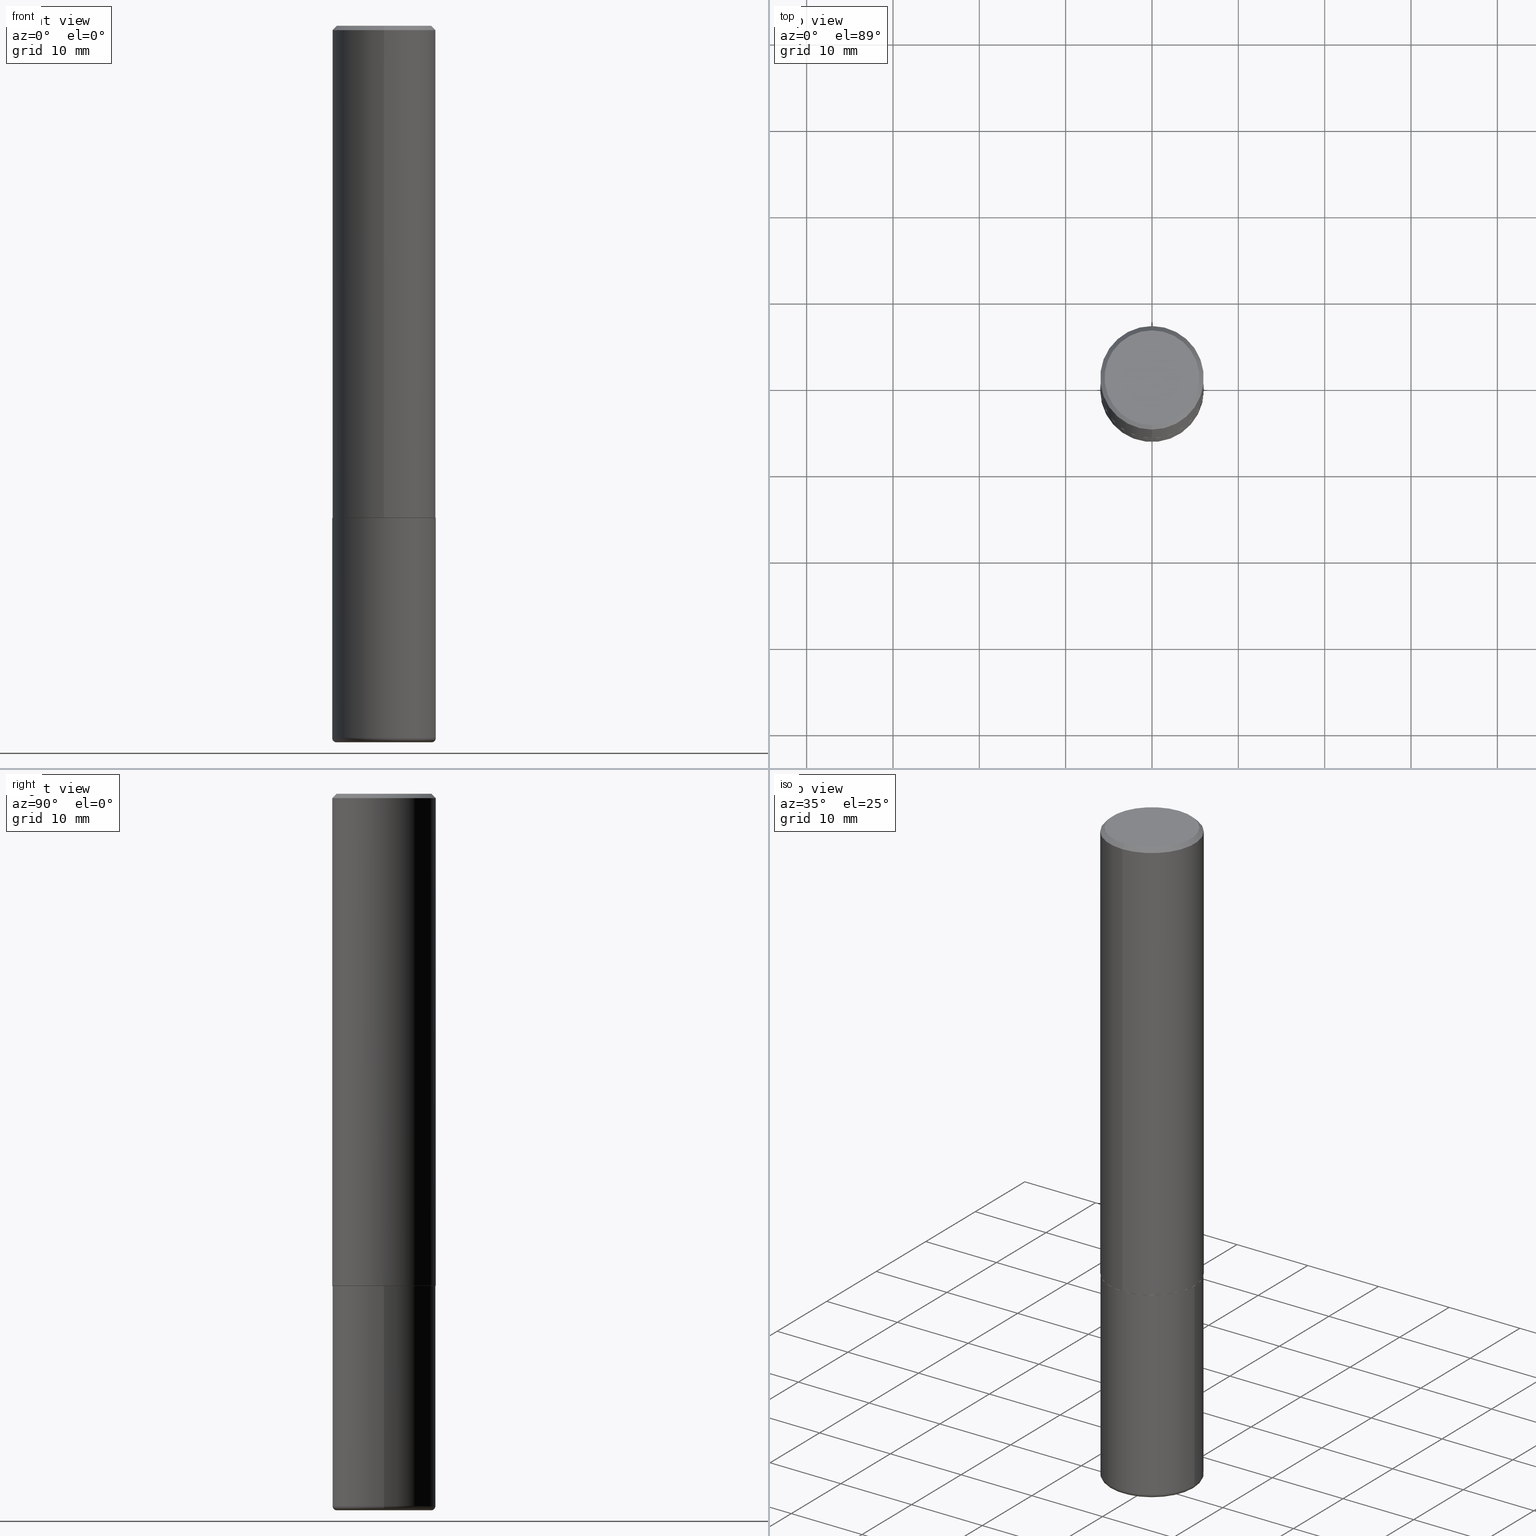
[diagram: canonical four-view strip — front | top / right | iso, engineering-drawing reading convention]
A machine part, canonical four-view strip (front | top / right | iso — engineering-drawing reading convention). The complete STEP part file that produces these views, byte-faithful:
ISO-10303-21;
HEADER;
FILE_DESCRIPTION (( 'STEP AP203' ),
    '1' );
FILE_NAME ('47128.STEP',
    '2024-03-05T21:36:11',
    ( '' ),
    ( '' ),
    'SwSTEP 2.0',
    'SolidWorks 2023',
    '' );
FILE_SCHEMA (( 'CONFIG_CONTROL_DESIGN' ));
ENDSEC;

DATA;
#1 = AXIS2_PLACEMENT_3D ( 'NONE', #394, #118, #313 ) ;
#2 = ORIENTED_EDGE ( 'NONE', *, *, #292, .T. ) ;
#3 = DIRECTION ( 'NONE',  ( -1.000000000000000000, 6.982962677686265922E-15, -4.876176775795935793E-29 ) ) ;
#4 = TOROIDAL_SURFACE ( 'NONE', #249, 0.2164999999999999980, 0.01969999999999962059 ) ;
#5 = COORDINATED_UNIVERSAL_TIME_OFFSET ( 5, 0, .BEHIND. ) ;
#6 = LINE ( 'NONE', #77, #261 ) ;
#7 = DIRECTION ( 'NONE',  ( -2.445468806185136597E-29, 3.491481338843145583E-15, 1.000000000000000000 ) ) ;
#8 = CC_DESIGN_PERSON_AND_ORGANIZATION_ASSIGNMENT ( #275, #113, ( #400 ) ) ;
#9 = ORIENTED_EDGE ( 'NONE', *, *, #177, .T. ) ;
#10 = CARTESIAN_POINT ( 'NONE',  ( 7.991058417971169471E-29, -1.140911357093774486E-14, -3.267699999999999605 ) ) ;
#11 = VERTEX_POINT ( 'NONE', #71 ) ;
#12 = EDGE_CURVE ( 'NONE', #156, #24, #344, .T. ) ;
#13 = AXIS2_PLACEMENT_3D ( 'NONE', #93, #348, #55 ) ;
#14 = DIRECTION ( 'NONE',  ( -6.982962677686265133E-15, -1.000000000000000000, 3.484499991918703113E-15 ) ) ;
#15 = PRODUCT_RELATED_PRODUCT_CATEGORY ( 'detail', '', ( #400 ) ) ;
#16 = APPROVAL_ROLE ( '' ) ;
#17 = DATE_TIME_ROLE ( 'creation_date' ) ;
#18 = LINE ( 'NONE', #50, #407 ) ;
#19 = ORIENTED_EDGE ( 'NONE', *, *, #272, .T. ) ;
#20 = PERSON_AND_ORGANIZATION_ROLE ( 'creator' ) ;
#21 = DIRECTION ( 'NONE',  ( -1.000000000000000000, 7.105427357600965571E-15, 0.000000000000000000 ) ) ;
#22 = AXIS2_PLACEMENT_3D ( 'NONE', #417, #260, #138 ) ;
#23 = AXIS2_PLACEMENT_3D ( 'NONE', #248, #85, #211 ) ;
#24 = VERTEX_POINT ( 'NONE', #236 ) ;
#25 = APPROVAL_STATUS ( 'not_yet_approved' ) ;
#26 = DIRECTION ( 'NONE',  ( 6.982962677686265922E-15, 1.000000000000000000, -3.487819265831410167E-15 ) ) ;
#27 = EDGE_CURVE ( 'NONE', #243, #24, #124, .T. ) ;
#28 = ORIENTED_EDGE ( 'NONE', *, *, #333, .F. ) ;
#29 = CARTESIAN_POINT ( 'NONE',  ( 1.579546157692633621E-15, 0.2161999999999999478, -6.694880156558795861E-16 ) ) ;
#30 = ORIENTED_EDGE ( 'NONE', *, *, #226, .F. ) ;
#31 = ADVANCED_FACE ( 'NONE', ( #197 ), #289, .F. ) ;
#32 = LINE ( 'NONE', #94, #286 ) ;
#33 = ADVANCED_FACE ( 'NONE', ( #229 ), #411, .T. ) ;
#34 = AXIS2_PLACEMENT_3D ( 'NONE', #396, #240, #75 ) ;
#35 = AXIS2_PLACEMENT_3D ( 'NONE', #375, #269, #337 ) ;
#36 = ORGANIZATION ( 'UNSPECIFIED', 'UNSPECIFIED', '' ) ;
#37 = VERTEX_POINT ( 'NONE', #382 ) ;
#38 = DIRECTION ( 'NONE',  ( 1.000000000000000000, -6.982962677686269077E-15, 0.000000000000000000 ) ) ;
#39 = DIRECTION ( 'NONE',  ( -2.445221809746292518E-29, 3.491835051801734308E-15, 1.000000000000000000 ) ) ;
#40 = CIRCLE ( 'NONE', #13, 0.2164999999999999980 ) ;
#41 = CC_DESIGN_APPROVAL ( #101, ( #206 ) ) ;
#42 = CC_DESIGN_DATE_AND_TIME_ASSIGNMENT ( #378, #17, ( #206 ) ) ;
#43 = DIRECTION ( 'NONE',  ( -2.445221809746292518E-29, 3.491835051801734308E-15, 1.000000000000000000 ) ) ;
#44 = ADVANCED_BREP_SHAPE_REPRESENTATION ( '47128', ( #299, #152, #201 ), #399 ) ;
#45 = CARTESIAN_POINT ( 'NONE',  ( 7.942882682489324976E-29, -1.134033138856253841E-14, -3.248000000000000220 ) ) ;
#46 = ORIENTED_EDGE ( 'NONE', *, *, #126, .F. ) ;
#47 = DIRECTION ( 'NONE',  ( -2.445221809746292518E-29, 3.491835051801734308E-15, 1.000000000000000000 ) ) ;
#48 = ORIENTED_EDGE ( 'NONE', *, *, #384, .T. ) ;
#49 = CIRCLE ( 'NONE', #231, 0.2362000000000002709 ) ;
#50 = CARTESIAN_POINT ( 'NONE',  ( -1.649375784469497117E-15, -0.2362000000000001598, 8.247714392355702416E-16 ) ) ;
#51 = ORIENTED_EDGE ( 'NONE', *, *, #168, .T. ) ;
#52 = PERSON_AND_ORGANIZATION ( #234, #36 ) ;
#53 = DIRECTION ( 'NONE',  ( 7.105427357601001859E-15, 1.000000000000000000, -3.491481338843145583E-15 ) ) ;
#54 = EDGE_CURVE ( 'NONE', #243, #139, #32, .T. ) ;
#55 = DIRECTION ( 'NONE',  ( 1.000000000000000000, -6.982962677686267499E-15, 0.000000000000000000 ) ) ;
#56 = ORIENTED_EDGE ( 'NONE', *, *, #70, .T. ) ;
#57 = CARTESIAN_POINT ( 'NONE',  ( 1.674749228186611702E-15, 0.2351999999999921653, -2.244100000000000872 ) ) ;
#58 = EDGE_CURVE ( 'NONE', #60, #11, #137, .T. ) ;
#59 = CIRCLE ( 'NONE', #97, 0.2362000000000000766 ) ;
#60 = VERTEX_POINT ( 'NONE', #274 ) ;
#61 = DATE_AND_TIME ( #95, #69 ) ;
#62 = DIRECTION ( 'NONE',  ( 5.024295867789263036E-15, 0.7071067811867189912, 0.7071067811863760433 ) ) ;
#63 = EDGE_CURVE ( 'NONE', #353, #139, #390, .T. ) ;
#64 = ORIENTED_EDGE ( 'NONE', *, *, #333, .T. ) ;
#65 = ORIENTED_EDGE ( 'NONE', *, *, #76, .T. ) ;
#66 = EDGE_CURVE ( 'NONE', #11, #60, #59, .T. ) ;
#67 = DIRECTION ( 'NONE',  ( 0.000000000000000000, 0.000000000000000000, 1.000000000000000000 ) ) ;
#68 = VECTOR ( 'NONE', #161, 39.37007874015748143 ) ;
#69 = LOCAL_TIME ( 16, 36, 11.00000000000000000, #383 ) ;
#70 = EDGE_CURVE ( 'NONE', #285, #159, #244, .T. ) ;
#71 = CARTESIAN_POINT ( 'NONE',  ( -1.620449627073635473E-15, -0.2362000000000001321, -0.01999999999999922673 ) ) ;
#72 = AXIS2_PLACEMENT_3D ( 'NONE', #315, #262, #218 ) ;
#73 = LOCAL_TIME ( 16, 36, 11.00000000000000000, #5 ) ;
#74 = EDGE_LOOP ( 'NONE', ( #342, #9, #105, #332 ) ) ;
#75 = DIRECTION ( 'NONE',  ( 1.000000000000000000, -6.982962677686267499E-15, 4.883557194083112901E-29 ) ) ;
#76 = EDGE_CURVE ( 'NONE', #285, #323, #351, .T. ) ;
#77 = CARTESIAN_POINT ( 'NONE',  ( -1.620449627073635473E-15, -0.2362000000000001321, -0.01999999999999922673 ) ) ;
#78 = AXIS2_PLACEMENT_3D ( 'NONE', #304, #294, #263 ) ;
#79 = LOCAL_TIME ( 16, 36, 11.00000000000000000, #364 ) ;
#80 = CARTESIAN_POINT ( 'NONE',  ( 5.487322263251655570E-29, -7.836027039748271518E-15, -2.244099999999999984 ) ) ;
#81 = APPROVAL_STATUS ( 'not_yet_approved' ) ;
#82 = CARTESIAN_POINT ( 'NONE',  ( -0.2361999999999999933, -7.909480388664863981E-15, -2.244100000000000428 ) ) ;
#83 = ORIENTED_EDGE ( 'NONE', *, *, #398, .F. ) ;
#84 = DATE_AND_TIME ( #281, #308 ) ;
#85 = DIRECTION ( 'NONE',  ( -2.445468806185136597E-29, 3.491481338843145583E-15, 1.000000000000000000 ) ) ;
#86 = EDGE_LOOP ( 'NONE', ( #30, #28, #2, #116 ) ) ;
#87 = AXIS2_PLACEMENT_3D ( 'NONE', #319, #165, #389 ) ;
#88 = APPROVAL_PERSON_ORGANIZATION ( #216, #357, #251 ) ;
#89 = CARTESIAN_POINT ( 'NONE',  ( 0.000000000000000000, 0.000000000000000000, 0.000000000000000000 ) ) ;
#90 = CARTESIAN_POINT ( 'NONE',  ( -2.089361895350857775E-45, 2.983658608395124733E-31, 8.544672254365514246E-17 ) ) ;
#91 = EDGE_LOOP ( 'NONE', ( #64, #51 ) ) ;
#92 = EDGE_CURVE ( 'NONE', #37, #60, #180, .T. ) ;
#93 = CARTESIAN_POINT ( 'NONE',  ( 7.991058417971169471E-29, -1.140911357093774486E-14, -3.267699999999999605 ) ) ;
#94 = CARTESIAN_POINT ( 'NONE',  ( -0.2361999999999999933, 1.678301941865356591E-15, -1.161852468318208757E-29 ) ) ;
#95 = CALENDAR_DATE ( 2024, 5, 3 ) ;
#96 = FACE_OUTER_BOUND ( 'NONE', #74, .T. ) ;
#97 = AXIS2_PLACEMENT_3D ( 'NONE', #207, #43, #338 ) ;
#98 = ADVANCED_FACE ( 'NONE', ( #372 ), #334, .T. ) ;
#99 = AXIS2_PLACEMENT_3D ( 'NONE', #89, #385, #324 ) ;
#100 = VERTEX_POINT ( 'NONE', #171 ) ;
#101 = APPROVAL ( #81, 'UNSPECIFIED' ) ;
#102 = DIRECTION ( 'NONE',  ( -1.000000000000000000, 6.982962677686265922E-15, -4.876176775795935793E-29 ) ) ;
#103 = AXIS2_PLACEMENT_3D ( 'NONE', #10, #144, #109 ) ;
#104 = CC_DESIGN_APPROVAL ( #357, ( #114 ) ) ;
#105 = ORIENTED_EDGE ( 'NONE', *, *, #12, .T. ) ;
#106 = ORIENTED_EDGE ( 'NONE', *, *, #27, .T. ) ;
#107 = AXIS2_PLACEMENT_3D ( 'NONE', #143, #7, #403 ) ;
#108 = PERSON_AND_ORGANIZATION ( #234, #36 ) ;
#109 = DIRECTION ( 'NONE',  ( 1.000000000000000000, -6.982962677686267499E-15, 0.000000000000000000 ) ) ;
#110 = CARTESIAN_POINT ( 'NONE',  ( 5.487322263251655570E-29, -7.836027039748271518E-15, -2.244099999999999984 ) ) ;
#111 = CARTESIAN_POINT ( 'NONE',  ( 5.487322263251655570E-29, -7.836027039748271518E-15, -2.244099999999999984 ) ) ;
#112 = AXIS2_PLACEMENT_3D ( 'NONE', #256, #297, #354 ) ;
#113 = PERSON_AND_ORGANIZATION_ROLE ( 'design_owner' ) ;
#114 = SECURITY_CLASSIFICATION ( '', '', #258 ) ;
#115 = CARTESIAN_POINT ( 'NONE',  ( -0.2164999999999999980, -9.766408997357156869E-15, -3.267699999999999605 ) ) ;
#116 = ORIENTED_EDGE ( 'NONE', *, *, #58, .T. ) ;
#117 = SHAPE_DEFINITION_REPRESENTATION ( #339, #44 ) ;
#118 = DIRECTION ( 'NONE',  ( -2.445221809746292518E-29, 3.491835051801734308E-15, 1.000000000000000000 ) ) ;
#119 = ORIENTED_EDGE ( 'NONE', *, *, #272, .F. ) ;
#120 = PERSON_AND_ORGANIZATION_ROLE ( 'classification_officer' ) ;
#121 = FACE_OUTER_BOUND ( 'NONE', #86, .T. ) ;
#122 = EDGE_LOOP ( 'NONE', ( #19, #266, #196, #178 ) ) ;
#123 = PERSON_AND_ORGANIZATION ( #234, #36 ) ;
#124 = CIRCLE ( 'NONE', #87, 0.2361999999999999933 ) ;
#125 = PLANE ( 'NONE',  #167 ) ;
#126 = EDGE_CURVE ( 'NONE', #24, #353, #202, .T. ) ;
#127 = CARTESIAN_POINT ( 'NONE',  ( 5.487322263251655570E-29, -7.836027039748271518E-15, -2.244099999999999984 ) ) ;
#128 = DIRECTION ( 'NONE',  ( 2.438088387897960049E-29, -3.491481338843145188E-15, -1.000000000000000000 ) ) ;
#129 = COORDINATED_UNIVERSAL_TIME_OFFSET ( 5, 0, .BEHIND. ) ;
#130 = DIRECTION ( 'NONE',  ( 2.445221809746292518E-29, -3.491835051801734308E-15, -1.000000000000000000 ) ) ;
#131 = DIRECTION ( 'NONE',  ( -2.445468806185136877E-29, 3.491481338843145188E-15, 1.000000000000000000 ) ) ;
#132 = DIRECTION ( 'NONE',  ( 6.982962677686265922E-15, 1.000000000000000000, -3.491835051801734702E-15 ) ) ;
#133 = AXIS2_PLACEMENT_3D ( 'NONE', #409, #128, #102 ) ;
#134 = ORIENTED_EDGE ( 'NONE', *, *, #66, .T. ) ;
#135 = APPLICATION_PROTOCOL_DEFINITION ( 'international standard', 'config_control_design', 1994, #253 ) ;
#136 =( CONVERSION_BASED_UNIT ( 'INCH', #329 ) LENGTH_UNIT ( ) NAMED_UNIT ( #296 ) );
#137 = CIRCLE ( 'NONE', #22, 0.2362000000000000766 ) ;
#138 = DIRECTION ( 'NONE',  ( -6.982962677686265922E-15, -1.000000000000000000, 3.487819265831410167E-15 ) ) ;
#139 = VERTEX_POINT ( 'NONE', #82 ) ;
#140 = CC_DESIGN_PERSON_AND_ORGANIZATION_ASSIGNMENT ( #151, #120, ( #114 ) ) ;
#141 = CARTESIAN_POINT ( 'NONE',  ( 0.2164999999999999980, -1.292092499065682217E-14, -3.267699999999999605 ) ) ;
#142 = CALENDAR_DATE ( 2024, 5, 3 ) ;
#143 = CARTESIAN_POINT ( 'NONE',  ( 0.000000000000000000, 0.000000000000000000, 0.000000000000000000 ) ) ;
#144 = DIRECTION ( 'NONE',  ( -2.445468806185136597E-29, 3.491481338843145583E-15, 1.000000000000000000 ) ) ;
#145 = DIRECTION ( 'NONE',  ( -6.982962677686265133E-15, -1.000000000000000000, 3.484499991918703113E-15 ) ) ;
#146 = CIRCLE ( 'NONE', #367, 0.2361999999999999933 ) ;
#147 = ADVANCED_FACE ( 'NONE', ( #307 ), #306, .T. ) ;
#148 = DIRECTION ( 'NONE',  ( -4.851104656540962697E-15, -0.7071067811865497932, -0.7071067811865452413 ) ) ;
#149 = CARTESIAN_POINT ( 'NONE',  ( 7.942882682489324976E-29, -1.134033138856253841E-14, -3.248000000000000220 ) ) ;
#150 = ORIENTED_EDGE ( 'NONE', *, *, #126, .T. ) ;
#151 = PERSON_AND_ORGANIZATION ( #234, #36 ) ;
#152 = MANIFOLD_SOLID_BREP ( 'Body-Move/Copy2[2]', #214 ) ;
#153 = DIRECTION ( 'NONE',  ( -2.445221809746292518E-29, 3.491835051801734702E-15, 1.000000000000000000 ) ) ;
#154 = ORIENTED_EDGE ( 'NONE', *, *, #63, .F. ) ;
#155 = DIRECTION ( 'NONE',  ( -2.445468806185136597E-29, 3.491481338843145583E-15, 1.000000000000000000 ) ) ;
#156 = VERTEX_POINT ( 'NONE', #141 ) ;
#157 = APPROVAL_DATE_TIME ( #61, #357 ) ;
#158 = CARTESIAN_POINT ( 'NONE',  ( 1.509716530915770323E-15, 0.2161999999999999478, -7.122113769277070896E-16 ) ) ;
#159 = VERTEX_POINT ( 'NONE', #336 ) ;
#160 = CC_DESIGN_PERSON_AND_ORGANIZATION_ASSIGNMENT ( #52, #20, ( #287 ) ) ;
#161 = DIRECTION ( 'NONE',  ( 4.937700262164546464E-15, 0.7071067811865449082, -0.7071067811865501263 ) ) ;
#162 = EDGE_LOOP ( 'NONE', ( #393, #358, #317, #227 ) ) ;
#163 = TOROIDAL_SURFACE ( 'NONE', #34, 0.2164999999999999980, 0.01969999999999962059 ) ;
#164 = CONICAL_SURFACE ( 'NONE', #237, 0.2362000000000000766, 0.7853981633974480570 ) ;
#165 = DIRECTION ( 'NONE',  ( -2.445468806185136597E-29, 3.491481338843145583E-15, 1.000000000000000000 ) ) ;
#166 = AXIS2_PLACEMENT_3D ( 'NONE', #80, #47, #340 ) ;
#167 = AXIS2_PLACEMENT_3D ( 'NONE', #288, #379, #376 ) ;
#168 = EDGE_CURVE ( 'NONE', #100, #254, #361, .T. ) ;
#169 = EDGE_LOOP ( 'NONE', ( #213, #316 ) ) ;
#170 = CC_DESIGN_PERSON_AND_ORGANIZATION_ASSIGNMENT ( #123, #321, ( #287 ) ) ;
#171 = CARTESIAN_POINT ( 'NONE',  ( -1.551844647095920142E-15, -0.2161999999999999478, 8.403814607431897971E-16 ) ) ;
#172 = PERSON_AND_ORGANIZATION ( #234, #36 ) ;
#173 = CYLINDRICAL_SURFACE ( 'NONE', #107, 0.2361999999999999933 ) ;
#174 = CIRCLE ( 'NONE', #72, 0.2362000000000002709 ) ;
#175 = CARTESIAN_POINT ( 'NONE',  ( 1.678301941865357577E-15, 0.2362000000000001598, -8.247714392355702416E-16 ) ) ;
#176 = CARTESIAN_POINT ( 'NONE',  ( 0.2361999999999999933, -1.649375784469496131E-15, 1.151752954443000088E-29 ) ) ;
#177 = EDGE_CURVE ( 'NONE', #200, #156, #265, .T. ) ;
#178 = ORIENTED_EDGE ( 'NONE', *, *, #12, .F. ) ;
#179 = CALENDAR_DATE ( 2024, 5, 3 ) ;
#180 = LINE ( 'NONE', #175, #223 ) ;
#181 = ORIENTED_EDGE ( 'NONE', *, *, #384, .F. ) ;
#182 = CONICAL_SURFACE ( 'NONE', #377, 0.2351999999999999924, 0.7853981633976873100 ) ;
#183 = DIRECTION ( 'NONE',  ( -2.445221809746292518E-29, 3.491835051801734308E-15, 1.000000000000000000 ) ) ;
#184 = EDGE_LOOP ( 'NONE', ( #119, #380 ) ) ;
#185 = COORDINATED_UNIVERSAL_TIME_OFFSET ( 5, 0, .BEHIND. ) ;
#186 = PLANE ( 'NONE',  #387 ) ;
#187 = DATE_AND_TIME ( #190, #215 ) ;
#188 = CARTESIAN_POINT ( 'NONE',  ( 1.649375784469496920E-15, 0.2361999999999999933, -0.02000000000000087472 ) ) ;
#189 = ORIENTED_EDGE ( 'NONE', *, *, #412, .F. ) ;
#190 = CALENDAR_DATE ( 2024, 5, 3 ) ;
#191 = CIRCLE ( 'NONE', #320, 0.01969999999999962059 ) ;
#192 = FACE_OUTER_BOUND ( 'NONE', #91, .T. ) ;
#193 = ORIENTED_EDGE ( 'NONE', *, *, #246, .T. ) ;
#194 = PERSON_AND_ORGANIZATION ( #234, #36 ) ;
#195 = CARTESIAN_POINT ( 'NONE',  ( 1.671196514507810212E-15, 0.2351999999999921653, -2.244100000000000872 ) ) ;
#196 = ORIENTED_EDGE ( 'NONE', *, *, #209, .F. ) ;
#197 = FACE_OUTER_BOUND ( 'NONE', #267, .T. ) ;
#198 = CONICAL_SURFACE ( 'NONE', #302, 0.2351999999999999924, 0.7853981633976873100 ) ;
#199 = ADVANCED_FACE ( 'NONE', ( #203 ), #163, .T. ) ;
#200 = VERTEX_POINT ( 'NONE', #115 ) ;
#201 = AXIS2_PLACEMENT_3D ( 'NONE', #230, #67, #298 ) ;
#202 = LINE ( 'NONE', #176, #242 ) ;
#203 = FACE_OUTER_BOUND ( 'NONE', #122, .T. ) ;
#204 = DIRECTION ( 'NONE',  ( -4.937700262165728178E-15, -0.7071067811867141062, 0.7071067811863809283 ) ) ;
#205 = AXIS2_PLACEMENT_3D ( 'NONE', #252, #130, #318 ) ;
#206 = PRODUCT_DEFINITION ( 'UNKNOWN', '', #287, #335 ) ;
#207 = CARTESIAN_POINT ( 'NONE',  ( 4.890443619492597157E-31, -6.983670103603485970E-17, -0.02000000000000005246 ) ) ;
#208 = DIRECTION ( 'NONE',  ( -2.445221809746292518E-29, 3.491835051801734702E-15, 1.000000000000000000 ) ) ;
#209 = EDGE_CURVE ( 'NONE', #24, #243, #146, .T. ) ;
#210 = ORIENTED_EDGE ( 'NONE', *, *, #54, .T. ) ;
#211 = DIRECTION ( 'NONE',  ( 1.000000000000000000, -6.982962677686269077E-15, 0.000000000000000000 ) ) ;
#212 = ADVANCED_FACE ( 'NONE', ( #365 ), #182, .T. ) ;
#213 = ORIENTED_EDGE ( 'NONE', *, *, #76, .F. ) ;
#214 = CLOSED_SHELL ( 'NONE', ( #359, #33, #363, #300, #341, #212, #326, #371 ) ) ;
#215 = LOCAL_TIME ( 16, 36, 11.00000000000000000, #129 ) ;
#216 = PERSON_AND_ORGANIZATION ( #234, #36 ) ;
#217 = DIRECTION ( 'NONE',  ( -2.445221809746292518E-29, 3.491835051801734308E-15, 1.000000000000000000 ) ) ;
#218 = DIRECTION ( 'NONE',  ( -6.982962677686265922E-15, -1.000000000000000000, 3.469747663417773058E-15 ) ) ;
#219 = ORIENTED_EDGE ( 'NONE', *, *, #295, .F. ) ;
#220 = FACE_OUTER_BOUND ( 'NONE', #314, .T. ) ;
#221 = ORIENTED_EDGE ( 'NONE', *, *, #66, .F. ) ;
#222 = AXIS2_PLACEMENT_3D ( 'NONE', #276, #271, #3 ) ;
#223 = VECTOR ( 'NONE', #208, 39.37007874015748143 ) ;
#224 = CC_DESIGN_APPROVAL ( #392, ( #287 ) ) ;
#225 = CARTESIAN_POINT ( 'NONE',  ( 0.2361999999999999933, -9.484609056967400443E-15, -2.244100000000000428 ) ) ;
#226 = EDGE_CURVE ( 'NONE', #100, #11, #6, .T. ) ;
#227 = ORIENTED_EDGE ( 'NONE', *, *, #58, .F. ) ;
#228 = ADVANCED_FACE ( 'NONE', ( #282 ), #173, .T. ) ;
#229 = FACE_OUTER_BOUND ( 'NONE', #397, .T. ) ;
#230 = CARTESIAN_POINT ( 'NONE',  ( 0.000000000000000000, 0.000000000000000000, 0.000000000000000000 ) ) ;
#231 = AXIS2_PLACEMENT_3D ( 'NONE', #343, #183, #346 ) ;
#232 = CC_DESIGN_PERSON_AND_ORGANIZATION_ASSIGNMENT ( #108, #238, ( #206 ) ) ;
#233 = ORIENTED_EDGE ( 'NONE', *, *, #303, .F. ) ;
#234 = PERSON ( 'UNSPECIFIED', 'UNSPECIFIED', 'UNSPECIFIED', ('UNSPECIFIED'), ('UNSPECIFIED'), ('UNSPECIFIED') ) ;
#235 = AXIS2_PLACEMENT_3D ( 'NONE', #110, #310, #145 ) ;
#236 = CARTESIAN_POINT ( 'NONE',  ( 0.2361999999999997990, -1.298970717303203178E-14, -3.248000000000000220 ) ) ;
#237 = AXIS2_PLACEMENT_3D ( 'NONE', #283, #349, #26 ) ;
#238 = PERSON_AND_ORGANIZATION_ROLE ( 'creator' ) ;
#239 = DIRECTION ( 'NONE',  ( 1.000000000000000000, -6.982962677686265133E-15, 0.000000000000000000 ) ) ;
#240 = DIRECTION ( 'NONE',  ( -2.445468806185136597E-29, 3.491481338843145583E-15, 1.000000000000000000 ) ) ;
#241 = CARTESIAN_POINT ( 'NONE',  ( -1.642392821791754699E-15, -0.2352000000000078195, -2.244099999999999095 ) ) ;
#242 = VECTOR ( 'NONE', #309, 39.37007874015748143 ) ;
#243 = VERTEX_POINT ( 'NONE', #395 ) ;
#244 = LINE ( 'NONE', #241, #301 ) ;
#245 = CARTESIAN_POINT ( 'NONE',  ( 5.487876547960065873E-29, -7.835233272497903917E-15, -2.244100000000000428 ) ) ;
#246 = EDGE_CURVE ( 'NONE', #323, #285, #414, .T. ) ;
#247 = ORIENTED_EDGE ( 'NONE', *, *, #54, .F. ) ;
#248 = CARTESIAN_POINT ( 'NONE',  ( 5.487876547960065873E-29, -7.835233272497903917E-15, -2.244100000000000428 ) ) ;
#249 = AXIS2_PLACEMENT_3D ( 'NONE', #149, #155, #322 ) ;
#250 = APPROVAL_PERSON_ORGANIZATION ( #172, #101, #305 ) ;
#251 = APPROVAL_ROLE ( '' ) ;
#252 = CARTESIAN_POINT ( 'NONE',  ( 4.890443619492597157E-31, -6.983670103603485970E-17, -0.02000000000000005246 ) ) ;
#253 = APPLICATION_CONTEXT ( 'configuration controlled 3d designs of mechanical parts and assemblies' ) ;
#254 = VERTEX_POINT ( 'NONE', #29 ) ;
#255 = CYLINDRICAL_SURFACE ( 'NONE', #99, 0.2362000000000001598 ) ;
#256 = CARTESIAN_POINT ( 'NONE',  ( 0.000000000000000000, 0.000000000000000000, 0.000000000000000000 ) ) ;
#257 = CC_DESIGN_DATE_AND_TIME_ASSIGNMENT ( #84, #402, ( #114 ) ) ;
#258 = SECURITY_CLASSIFICATION_LEVEL ( 'unclassified' ) ;
#259 = FACE_OUTER_BOUND ( 'NONE', #162, .T. ) ;
#260 = DIRECTION ( 'NONE',  ( -2.445221809746292518E-29, 3.491835051801734308E-15, 1.000000000000000000 ) ) ;
#261 = VECTOR ( 'NONE', #148, 39.37007874015748143 ) ;
#262 = DIRECTION ( 'NONE',  ( -2.445221809746292518E-29, 3.491835051801734308E-15, 1.000000000000000000 ) ) ;
#263 = DIRECTION ( 'NONE',  ( 1.000000000000000000, -6.982962677686265133E-15, 0.000000000000000000 ) ) ;
#264 = ADVANCED_FACE ( 'NONE', ( #96 ), #4, .T. ) ;
#265 = CIRCLE ( 'NONE', #103, 0.2164999999999999980 ) ;
#266 = ORIENTED_EDGE ( 'NONE', *, *, #311, .T. ) ;
#267 = EDGE_LOOP ( 'NONE', ( #325, #415 ) ) ;
#268 = APPROVAL_DATE_TIME ( #312, #101 ) ;
#269 = DIRECTION ( 'NONE',  ( -2.445468806185136597E-29, 3.491481338843145583E-15, 1.000000000000000000 ) ) ;
#270 = CIRCLE ( 'NONE', #23, 0.2361999999999999933 ) ;
#271 = DIRECTION ( 'NONE',  ( 2.438088387897960049E-29, -3.491481338843145188E-15, -1.000000000000000000 ) ) ;
#272 = EDGE_CURVE ( 'NONE', #156, #200, #40, .T. ) ;
#273 = APPLICATION_CONTEXT ( 'configuration controlled 3d designs of mechanical parts and assemblies' ) ;
#274 = CARTESIAN_POINT ( 'NONE',  ( 1.649375784469496920E-15, 0.2361999999999999933, -0.02000000000000087472 ) ) ;
#275 = PERSON_AND_ORGANIZATION ( #234, #36 ) ;
#276 = CARTESIAN_POINT ( 'NONE',  ( 1.374957371002732032E-28, -3.162591918377267000E-15, -3.267699999999999605 ) ) ;
#277 = CLOSED_SHELL ( 'NONE', ( #98, #199, #31, #228, #264, #147 ) ) ;
#278 = CC_DESIGN_SECURITY_CLASSIFICATION ( #114, ( #287 ) ) ;
#279 = AXIS2_PLACEMENT_3D ( 'NONE', #90, #408, #410 ) ;
#280 = ORIENTED_EDGE ( 'NONE', *, *, #226, .T. ) ;
#281 = CALENDAR_DATE ( 2024, 5, 3 ) ;
#282 = FACE_OUTER_BOUND ( 'NONE', #391, .T. ) ;
#283 = CARTESIAN_POINT ( 'NONE',  ( 4.890443619492597157E-31, -6.983670103603485970E-17, -0.02000000000000005246 ) ) ;
#284 = CARTESIAN_POINT ( 'NONE',  ( -0.2164999999999999980, -9.802006365641922115E-15, -3.248000000000000220 ) ) ;
#285 = VERTEX_POINT ( 'NONE', #293 ) ;
#286 = VECTOR ( 'NONE', #131, 39.37007874015748143 ) ;
#287 = PRODUCT_DEFINITION_FORMATION_WITH_SPECIFIED_SOURCE ( 'ANY', '', #400, .NOT_KNOWN. ) ;
#288 = CARTESIAN_POINT ( 'NONE',  ( 5.487322263251655570E-29, -7.836027039748273096E-15, -2.244100000000000428 ) ) ;
#289 = PLANE ( 'NONE',  #133 ) ;
#290 = LINE ( 'NONE', #195, #328 ) ;
#291 = ORIENTED_EDGE ( 'NONE', *, *, #295, .T. ) ;
#292 = EDGE_CURVE ( 'NONE', #254, #60, #381, .T. ) ;
#293 = CARTESIAN_POINT ( 'NONE',  ( -1.642392821791754699E-15, -0.2352000000000078195, -2.244099999999999095 ) ) ;
#294 = DIRECTION ( 'NONE',  ( -6.982962677686266711E-15, -1.000000000000000000, 3.491481338843145583E-15 ) ) ;
#295 = EDGE_CURVE ( 'NONE', #159, #37, #174, .T. ) ;
#296 = DIMENSIONAL_EXPONENTS ( 1.000000000000000000, 0.000000000000000000, 0.000000000000000000, 0.000000000000000000, 0.000000000000000000, 0.000000000000000000, 0.000000000000000000 ) ;
#297 = DIRECTION ( 'NONE',  ( -2.445221809746292518E-29, 3.491835051801734308E-15, 1.000000000000000000 ) ) ;
#298 = DIRECTION ( 'NONE',  ( 1.000000000000000000, 0.000000000000000000, 0.000000000000000000 ) ) ;
#299 = MANIFOLD_SOLID_BREP ( 'Body-Move/Copy2[1]', #277 ) ;
#300 = ADVANCED_FACE ( 'NONE', ( #121 ), #355, .T. ) ;
#301 = VECTOR ( 'NONE', #204, 39.37007874015748143 ) ;
#302 = AXIS2_PLACEMENT_3D ( 'NONE', #127, #217, #352 ) ;
#303 = EDGE_CURVE ( 'NONE', #159, #11, #18, .T. ) ;
#304 = CARTESIAN_POINT ( 'NONE',  ( 0.2164999999999999980, -1.285214280828161572E-14, -3.248000000000000220 ) ) ;
#305 = APPROVAL_ROLE ( '' ) ;
#306 = PLANE ( 'NONE',  #222 ) ;
#307 = FACE_OUTER_BOUND ( 'NONE', #184, .T. ) ;
#308 = LOCAL_TIME ( 16, 36, 11.00000000000000000, #185 ) ;
#309 = DIRECTION ( 'NONE',  ( -2.445468806185136877E-29, 3.491481338843145188E-15, 1.000000000000000000 ) ) ;
#310 = DIRECTION ( 'NONE',  ( -2.445221809746292518E-29, 3.491835051801734308E-15, 1.000000000000000000 ) ) ;
#311 = EDGE_CURVE ( 'NONE', #200, #243, #191, .T. ) ;
#312 = DATE_AND_TIME ( #179, #73 ) ;
#313 = DIRECTION ( 'NONE',  ( -6.982962677686265922E-15, -1.000000000000000000, 3.491835051801733913E-15 ) ) ;
#314 = EDGE_LOOP ( 'NONE', ( #327, #280, #134, #362 ) ) ;
#315 = CARTESIAN_POINT ( 'NONE',  ( 5.484877041441908919E-29, -7.832535204696471708E-15, -2.243100000000000094 ) ) ;
#316 = ORIENTED_EDGE ( 'NONE', *, *, #246, .F. ) ;
#317 = ORIENTED_EDGE ( 'NONE', *, *, #303, .T. ) ;
#318 = DIRECTION ( 'NONE',  ( 6.982962677686265922E-15, 1.000000000000000000, -3.487819265831410167E-15 ) ) ;
#319 = CARTESIAN_POINT ( 'NONE',  ( 7.942882682489324976E-29, -1.134033138856253841E-14, -3.248000000000000220 ) ) ;
#320 = AXIS2_PLACEMENT_3D ( 'NONE', #284, #53, #21 ) ;
#321 = PERSON_AND_ORGANIZATION_ROLE ( 'design_supplier' ) ;
#322 = DIRECTION ( 'NONE',  ( 1.000000000000000000, -6.982962677686267499E-15, 4.883557194083112901E-29 ) ) ;
#323 = VERTEX_POINT ( 'NONE', #57 ) ;
#324 = DIRECTION ( 'NONE',  ( -6.982962677686265922E-15, -1.000000000000000000, 3.491835051801734308E-15 ) ) ;
#325 = ORIENTED_EDGE ( 'NONE', *, *, #63, .T. ) ;
#326 = ADVANCED_FACE ( 'NONE', ( #406 ), #125, .F. ) ;
#327 = ORIENTED_EDGE ( 'NONE', *, *, #168, .F. ) ;
#328 = VECTOR ( 'NONE', #62, 39.37007874015748143 ) ;
#329 = LENGTH_MEASURE_WITH_UNIT ( LENGTH_MEASURE( 0.02539999999999999897 ), #330 );
#330 =( LENGTH_UNIT ( ) NAMED_UNIT ( * ) SI_UNIT ( $, .METRE. ) );
#331 = AXIS2_PLACEMENT_3D ( 'NONE', #245, #368, #38 ) ;
#332 = ORIENTED_EDGE ( 'NONE', *, *, #27, .F. ) ;
#333 = EDGE_CURVE ( 'NONE', #254, #100, #416, .T. ) ;
#334 = CYLINDRICAL_SURFACE ( 'NONE', #35, 0.2361999999999999933 ) ;
#335 = DESIGN_CONTEXT ( 'detailed design', #273, 'design' ) ;
#336 = CARTESIAN_POINT ( 'NONE',  ( -1.649375784469443080E-15, -0.2362000000000080979, -2.243099999999999206 ) ) ;
#337 = DIRECTION ( 'NONE',  ( 1.000000000000000000, -6.982962677686266711E-15, 4.876176775795936353E-29 ) ) ;
#338 = DIRECTION ( 'NONE',  ( -6.982962677686265922E-15, -1.000000000000000000, 3.487819265831410167E-15 ) ) ;
#339 = PRODUCT_DEFINITION_SHAPE ( 'NONE', 'NONE',  #206 ) ;
#340 = DIRECTION ( 'NONE',  ( -6.982962677686265133E-15, -1.000000000000000000, 3.484499991918703113E-15 ) ) ;
#341 = ADVANCED_FACE ( 'NONE', ( #259 ), #255, .T. ) ;
#342 = ORIENTED_EDGE ( 'NONE', *, *, #311, .F. ) ;
#343 = CARTESIAN_POINT ( 'NONE',  ( 5.484877041441908919E-29, -7.832535204696471708E-15, -2.243100000000000094 ) ) ;
#344 = CIRCLE ( 'NONE', #78, 0.01969999999999962059 ) ;
#345 = APPROVAL_STATUS ( 'not_yet_approved' ) ;
#346 = DIRECTION ( 'NONE',  ( -6.982962677686265922E-15, -1.000000000000000000, 3.469747663417773058E-15 ) ) ;
#347 = ORIENTED_EDGE ( 'NONE', *, *, #92, .T. ) ;
#348 = DIRECTION ( 'NONE',  ( -2.445468806185136597E-29, 3.491481338843145583E-15, 1.000000000000000000 ) ) ;
#349 = DIRECTION ( 'NONE',  ( 2.445221809746292518E-29, -3.491835051801734308E-15, -1.000000000000000000 ) ) ;
#350 = EDGE_LOOP ( 'NONE', ( #405, #210, #154, #46 ) ) ;
#351 = CIRCLE ( 'NONE', #166, 0.2351999999999999924 ) ;
#352 = DIRECTION ( 'NONE',  ( -6.982962677686265133E-15, -1.000000000000000000, 3.484499991918703113E-15 ) ) ;
#353 = VERTEX_POINT ( 'NONE', #225 ) ;
#354 = DIRECTION ( 'NONE',  ( -6.982962677686265922E-15, -1.000000000000000000, 3.491835051801734308E-15 ) ) ;
#355 = CONICAL_SURFACE ( 'NONE', #205, 0.2362000000000000766, 0.7853981633974480570 ) ;
#356 = MECHANICAL_CONTEXT ( 'NONE', #253, 'mechanical' ) ;
#357 = APPROVAL ( #25, 'UNSPECIFIED' ) ;
#358 = ORIENTED_EDGE ( 'NONE', *, *, #412, .T. ) ;
#359 = ADVANCED_FACE ( 'NONE', ( #413 ), #198, .T. ) ;
#360 = UNCERTAINTY_MEASURE_WITH_UNIT (LENGTH_MEASURE( 1.000000000000000082E-05 ), #136, 'distance_accuracy_value', 'NONE');
#361 = CIRCLE ( 'NONE', #1, 0.2161999999999999478 ) ;
#362 = ORIENTED_EDGE ( 'NONE', *, *, #292, .F. ) ;
#363 = ADVANCED_FACE ( 'NONE', ( #220 ), #164, .T. ) ;
#364 = COORDINATED_UNIVERSAL_TIME_OFFSET ( 5, 0, .BEHIND. ) ;
#365 = FACE_OUTER_BOUND ( 'NONE', #386, .T. ) ;
#366 = DIRECTION ( 'NONE',  ( -2.445468806185136597E-29, 3.491481338843145583E-15, 1.000000000000000000 ) ) ;
#367 = AXIS2_PLACEMENT_3D ( 'NONE', #45, #366, #239 ) ;
#368 = DIRECTION ( 'NONE',  ( -2.445468806185136597E-29, 3.491481338843145583E-15, 1.000000000000000000 ) ) ;
#369 = APPROVAL_PERSON_ORGANIZATION ( #194, #392, #16 ) ;
#370 = APPLICATION_PROTOCOL_DEFINITION ( 'international standard', 'config_control_design', 1994, #273 ) ;
#371 = ADVANCED_FACE ( 'NONE', ( #192 ), #186, .F. ) ;
#372 = FACE_OUTER_BOUND ( 'NONE', #350, .T. ) ;
#373 = ORIENTED_EDGE ( 'NONE', *, *, #70, .F. ) ;
#374 = APPROVAL_DATE_TIME ( #187, #392 ) ;
#375 = CARTESIAN_POINT ( 'NONE',  ( 0.000000000000000000, 0.000000000000000000, 0.000000000000000000 ) ) ;
#376 = DIRECTION ( 'NONE',  ( -6.982962677686265922E-15, -1.000000000000000000, 3.491835051801734702E-15 ) ) ;
#377 = AXIS2_PLACEMENT_3D ( 'NONE', #111, #39, #14 ) ;
#378 = DATE_AND_TIME ( #142, #79 ) ;
#379 = DIRECTION ( 'NONE',  ( -2.445221809746291958E-29, 3.491835051801734702E-15, 1.000000000000000000 ) ) ;
#380 = ORIENTED_EDGE ( 'NONE', *, *, #177, .F. ) ;
#381 = LINE ( 'NONE', #188, #68 ) ;
#382 = CARTESIAN_POINT ( 'NONE',  ( 1.678301941865385779E-15, 0.2361999999999924715, -2.243100000000000982 ) ) ;
#383 = COORDINATED_UNIVERSAL_TIME_OFFSET ( 5, 0, .BEHIND. ) ;
#384 = EDGE_CURVE ( 'NONE', #323, #37, #290, .T. ) ;
#385 = DIRECTION ( 'NONE',  ( -2.445221809746292518E-29, 3.491835051801734308E-15, 1.000000000000000000 ) ) ;
#386 = EDGE_LOOP ( 'NONE', ( #181, #193, #56, #189 ) ) ;
#387 = AXIS2_PLACEMENT_3D ( 'NONE', #158, #404, #132 ) ;
#388 =( NAMED_UNIT ( * ) SI_UNIT ( $, .STERADIAN. ) SOLID_ANGLE_UNIT ( ) );
#389 = DIRECTION ( 'NONE',  ( 1.000000000000000000, -6.982962677686265133E-15, 0.000000000000000000 ) ) ;
#390 = CIRCLE ( 'NONE', #331, 0.2361999999999999933 ) ;
#391 = EDGE_LOOP ( 'NONE', ( #247, #106, #150, #83 ) ) ;
#392 = APPROVAL ( #345, 'UNSPECIFIED' ) ;
#393 = ORIENTED_EDGE ( 'NONE', *, *, #92, .F. ) ;
#394 = CARTESIAN_POINT ( 'NONE',  ( -2.089361895350857775E-45, 2.983658608395124733E-31, 8.544672254365514246E-17 ) ) ;
#395 = CARTESIAN_POINT ( 'NONE',  ( -0.2361999999999997990, -9.662029446697183595E-15, -3.248000000000000220 ) ) ;
#396 = CARTESIAN_POINT ( 'NONE',  ( 7.942882682489324976E-29, -1.134033138856253841E-14, -3.248000000000000220 ) ) ;
#397 = EDGE_LOOP ( 'NONE', ( #291, #347, #221, #233 ) ) ;
#398 = EDGE_CURVE ( 'NONE', #139, #353, #270, .T. ) ;
#399 =( GEOMETRIC_REPRESENTATION_CONTEXT ( 3 ) GLOBAL_UNCERTAINTY_ASSIGNED_CONTEXT ( ( #360 ) ) GLOBAL_UNIT_ASSIGNED_CONTEXT ( ( #136, #418, #388 ) ) REPRESENTATION_CONTEXT ( 'NONE', 'WORKASPACE' ) );
#400 = PRODUCT ( '47128', '47128', '', ( #356 ) ) ;
#401 = EDGE_LOOP ( 'NONE', ( #65, #48, #219, #373 ) ) ;
#402 = DATE_TIME_ROLE ( 'classification_date' ) ;
#403 = DIRECTION ( 'NONE',  ( 1.000000000000000000, -6.982962677686266711E-15, 4.876176775795936353E-29 ) ) ;
#404 = DIRECTION ( 'NONE',  ( 2.445221809746291958E-29, -3.491835051801734702E-15, -1.000000000000000000 ) ) ;
#405 = ORIENTED_EDGE ( 'NONE', *, *, #209, .T. ) ;
#406 = FACE_OUTER_BOUND ( 'NONE', #169, .T. ) ;
#407 = VECTOR ( 'NONE', #153, 39.37007874015748143 ) ;
#408 = DIRECTION ( 'NONE',  ( -2.445221809746292518E-29, 3.491835051801734308E-15, 1.000000000000000000 ) ) ;
#409 = CARTESIAN_POINT ( 'NONE',  ( 5.487876547960065873E-29, -7.835233272497903917E-15, -2.244100000000000428 ) ) ;
#410 = DIRECTION ( 'NONE',  ( -6.982962677686265922E-15, -1.000000000000000000, 3.491835051801733913E-15 ) ) ;
#411 = CYLINDRICAL_SURFACE ( 'NONE', #112, 0.2362000000000001598 ) ;
#412 = EDGE_CURVE ( 'NONE', #37, #159, #49, .T. ) ;
#413 = FACE_OUTER_BOUND ( 'NONE', #401, .T. ) ;
#414 = CIRCLE ( 'NONE', #235, 0.2351999999999999924 ) ;
#415 = ORIENTED_EDGE ( 'NONE', *, *, #398, .T. ) ;
#416 = CIRCLE ( 'NONE', #279, 0.2161999999999999478 ) ;
#417 = CARTESIAN_POINT ( 'NONE',  ( 4.890443619492597157E-31, -6.983670103603485970E-17, -0.02000000000000005246 ) ) ;
#418 =( NAMED_UNIT ( * ) PLANE_ANGLE_UNIT ( ) SI_UNIT ( $, .RADIAN. ) );
ENDSEC;
END-ISO-10303-21;
